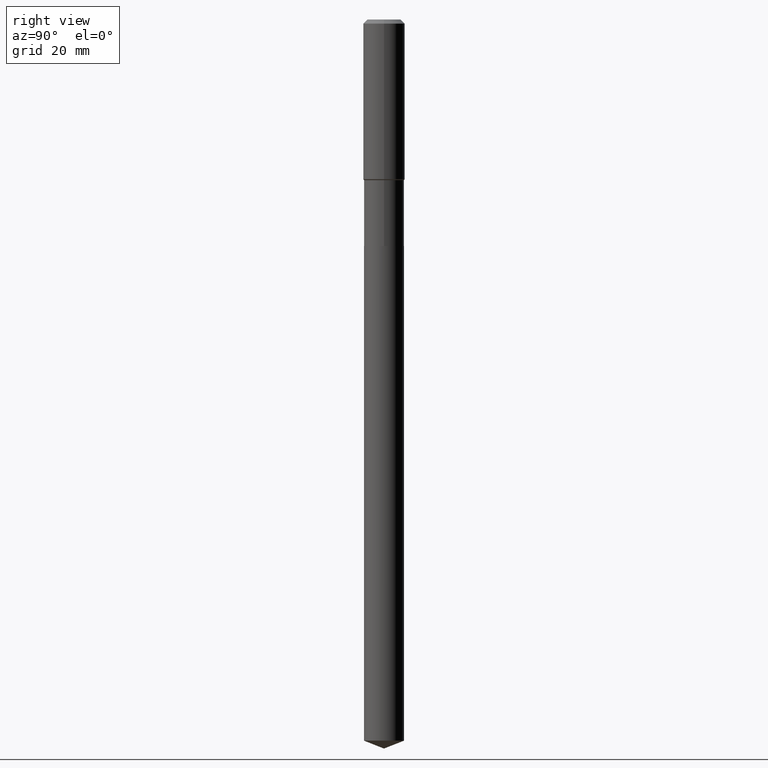
[diagram: clean part render]
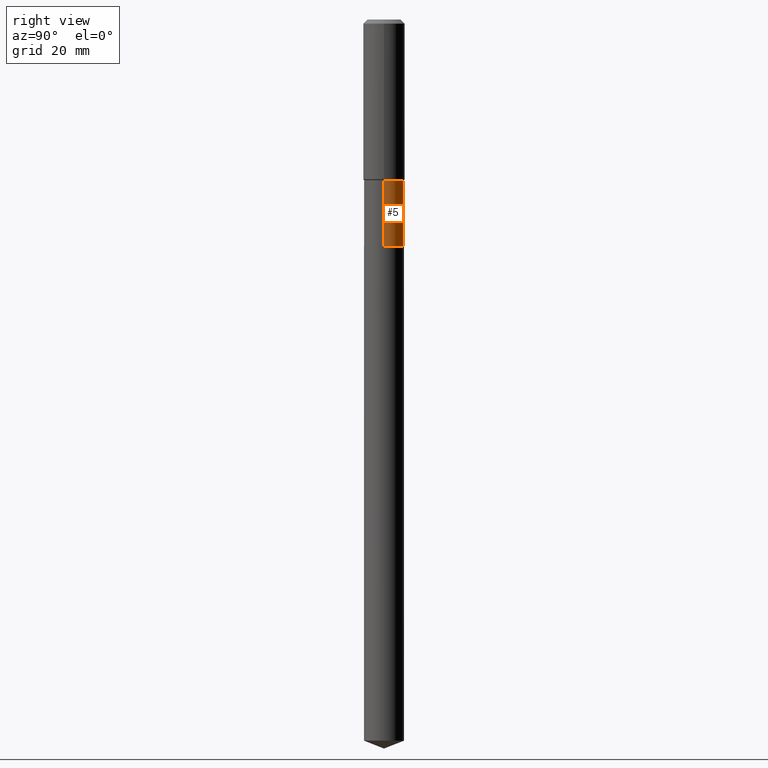
[diagram: same view with one face highlighted and labeled with its STEP entity id]
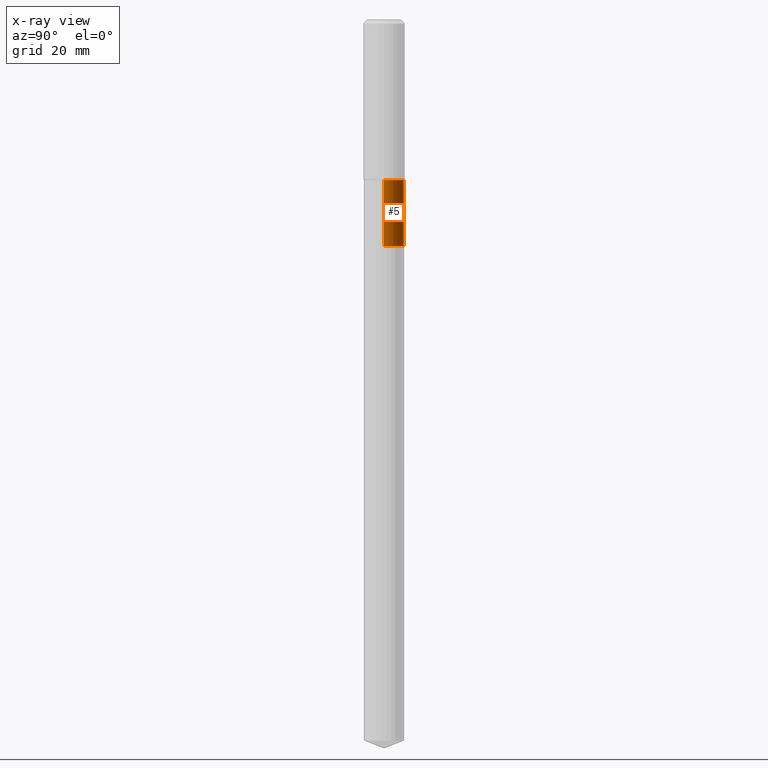
[diagram: x-ray of the same camera — body ghosted, the highlighted face saturated]
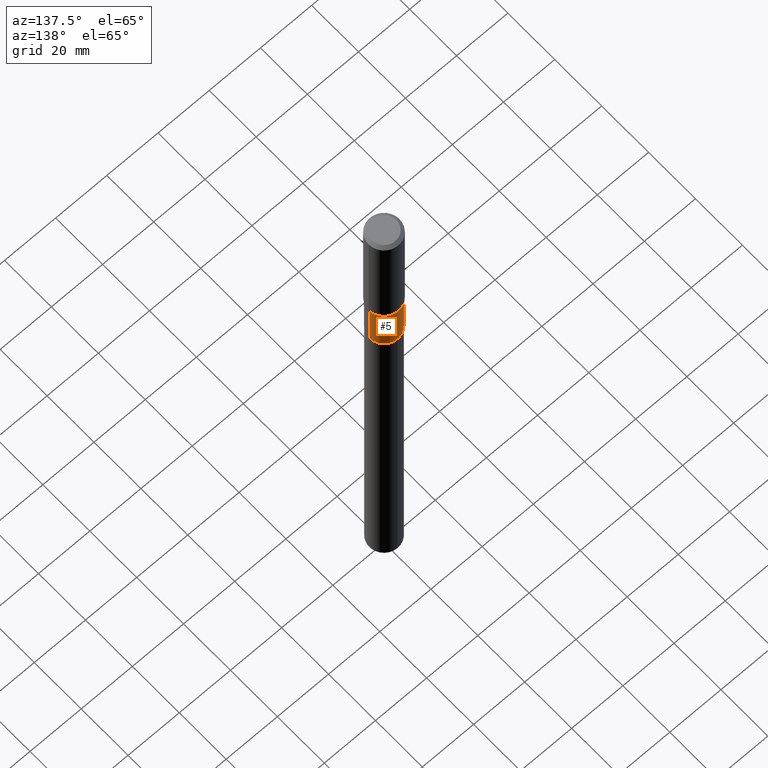
[diagram: same view with one face highlighted and labeled with its STEP entity id]
A machine part, right view. The second image highlights one B-rep face of the part: STEP entity #5.
The next image is the same camera in x-ray: the body ghosted, the highlighted face saturated — about 0% of this face is hidden behind the body in this view.
A second angle (auxiliary view) of the same face is appended — the face is thin or edge-on in the first view.
In plain terms, the highlighted cylindrical surface (edge-blend (fillet) strip) has radius 5.7506 mm, axis along (-0, 0, 1).
Its self-contained STEP definition (entity closure, byte-faithful):
#5 = ADVANCED_FACE ( 'NONE', ( #460 ), #123, .T. ) ;
#22 = VERTEX_POINT ( 'NONE', #170 ) ;
#41 = ORIENTED_EDGE ( 'NONE', *, *, #133, .T. ) ;
#45 = LINE ( 'NONE', #470, #60 ) ;
#50 = LINE ( 'NONE', #212, #472 ) ;
#55 = CARTESIAN_POINT ( 'NONE',  ( -0.2263999999999998791, -6.056529377535375225E-15, -1.822100000000000275 ) ) ;
#60 = VECTOR ( 'NONE', #330, 39.37007874015748143 ) ;
#82 = EDGE_CURVE ( 'NONE', #22, #276, #138, .T. ) ;
#88 = DIRECTION ( 'NONE',  ( 1.000000000000000000, -6.982962677686269077E-15, 0.000000000000000000 ) ) ;
#93 = DIRECTION ( 'NONE',  ( -2.445468806185136877E-29, 3.491481338843145188E-15, 1.000000000000000000 ) ) ;
#96 = DIRECTION ( 'NONE',  ( -2.445468806185136597E-29, 3.491481338843145583E-15, 1.000000000000000000 ) ) ;
#114 = DIRECTION ( 'NONE',  ( 1.000000000000000000, -6.982962677686267499E-15, 0.000000000000000000 ) ) ;
#123 = CYLINDRICAL_SURFACE ( 'NONE', #270, 0.2263999999999999346 ) ;
#133 = EDGE_CURVE ( 'NONE', #276, #458, #50, .T. ) ;
#138 = CIRCLE ( 'NONE', #408, 0.2263999999999999624 ) ;
#163 = VERTEX_POINT ( 'NONE', #363 ) ;
#170 = CARTESIAN_POINT ( 'NONE',  ( 0.2263999999999999624, -1.054951086531456022E-14, -2.568700000000000205 ) ) ;
#175 = EDGE_CURVE ( 'NONE', #163, #458, #288, .T. ) ;
#195 = ORIENTED_EDGE ( 'NONE', *, *, #175, .F. ) ;
#212 = CARTESIAN_POINT ( 'NONE',  ( -0.2263999999999999346, 1.608668753760866356E-15, -1.113646904433710280E-29 ) ) ;
#220 = EDGE_LOOP ( 'NONE', ( #224, #41, #195, #465 ) ) ;
#224 = ORIENTED_EDGE ( 'NONE', *, *, #82, .T. ) ;
#244 = DIRECTION ( 'NONE',  ( -2.445468806185136597E-29, 3.491481338843145583E-15, 1.000000000000000000 ) ) ;
#256 = CARTESIAN_POINT ( 'NONE',  ( -0.2263999999999999624, -6.056529377535375225E-15, -2.568700000000000205 ) ) ;
#270 = AXIS2_PLACEMENT_3D ( 'NONE', #280, #244, #429 ) ;
#276 = VERTEX_POINT ( 'NONE', #256 ) ;
#280 = CARTESIAN_POINT ( 'NONE',  ( 0.000000000000000000, 0.000000000000000000, 0.000000000000000000 ) ) ;
#283 = CARTESIAN_POINT ( 'NONE',  ( 6.281675722447761474E-29, -8.968568115086388210E-15, -2.568700000000000205 ) ) ;
#288 = CIRCLE ( 'NONE', #325, 0.2263999999999998791 ) ;
#325 = AXIS2_PLACEMENT_3D ( 'NONE', #417, #346, #114 ) ;
#330 = DIRECTION ( 'NONE',  ( -2.445468806185136877E-29, 3.491481338843145188E-15, 1.000000000000000000 ) ) ;
#346 = DIRECTION ( 'NONE',  ( -2.445468806185136597E-29, 3.491481338843145583E-15, 1.000000000000000000 ) ) ;
#363 = CARTESIAN_POINT ( 'NONE',  ( 0.2263999999999998791, -7.942770897734265382E-15, -1.822100000000000275 ) ) ;
#408 = AXIS2_PLACEMENT_3D ( 'NONE', #283, #96, #88 ) ;
#417 = CARTESIAN_POINT ( 'NONE',  ( 4.455888711749938171E-29, -6.361828147506095741E-15, -1.822100000000000275 ) ) ;
#429 = DIRECTION ( 'NONE',  ( 1.000000000000000000, -6.982962677686265922E-15, 4.876176775795935793E-29 ) ) ;
#448 = EDGE_CURVE ( 'NONE', #22, #163, #45, .T. ) ;
#458 = VERTEX_POINT ( 'NONE', #55 ) ;
#460 = FACE_OUTER_BOUND ( 'NONE', #220, .T. ) ;
#465 = ORIENTED_EDGE ( 'NONE', *, *, #448, .F. ) ;
#470 = CARTESIAN_POINT ( 'NONE',  ( 0.2263999999999999346, -1.580942750228170233E-15, 1.103966422040199590E-29 ) ) ;
#472 = VECTOR ( 'NONE', #93, 39.37007874015748143 ) ;